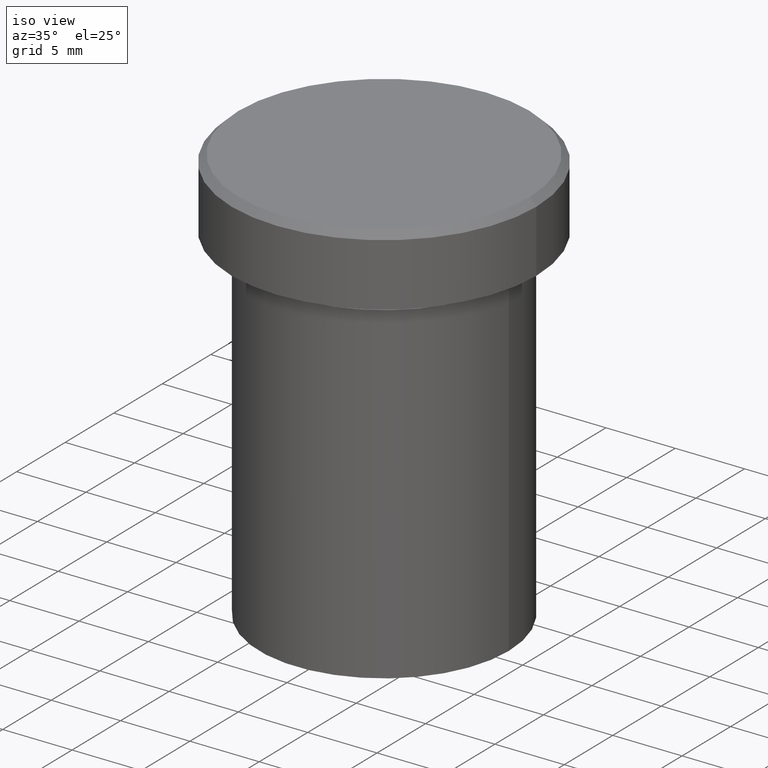
[diagram: clean part render]
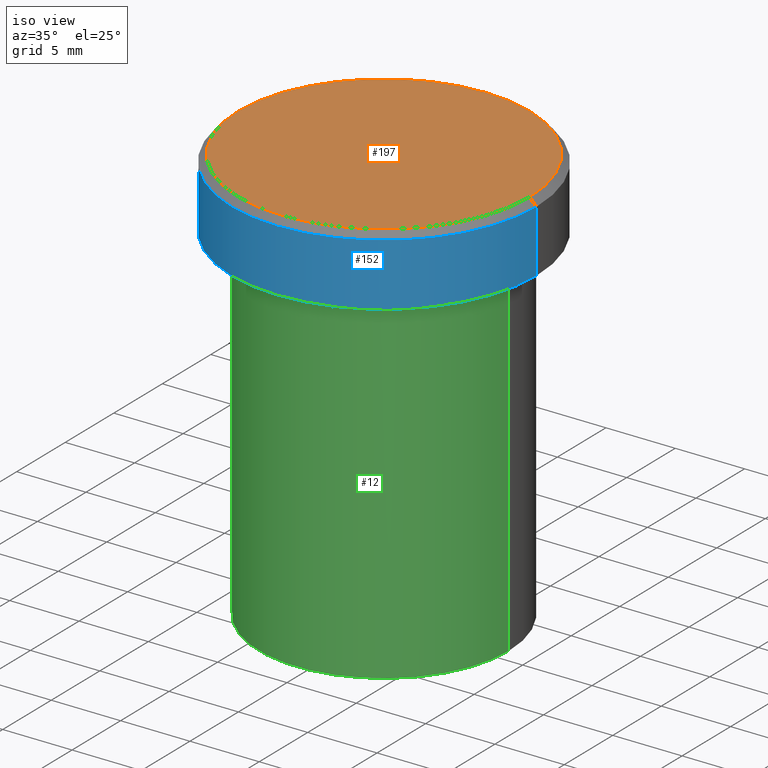
[diagram: same view with three faces highlighted in distinct colors, each labeled with its STEP entity id]
A machine part, iso view with three faces highlighted in distinct colors.
Their STEP definitions:

[orange] entity #197 — the highlighted planar face has unit normal (0, -0, 1).
#24 = ORIENTED_EDGE ( 'NONE', *, *, #82, .T. ) ;
#41 = AXIS2_PLACEMENT_3D ( 'NONE', #287, #258, #262 ) ;
#45 = DIRECTION ( 'NONE',  ( -0.000000000000000000, -0.000000000000000000, 1.000000000000000000 ) ) ;
#51 = CARTESIAN_POINT ( 'NONE',  ( 0.000000000000000000, 0.000000000000000000, 0.000000000000000000 ) ) ;
#69 = EDGE_CURVE ( 'NONE', #159, #156, #226, .T. ) ;
#82 = EDGE_CURVE ( 'NONE', #156, #159, #341, .T. ) ;
#150 = FACE_OUTER_BOUND ( 'NONE', #373, .T. ) ;
#156 = VERTEX_POINT ( 'NONE', #353 ) ;
#157 = AXIS2_PLACEMENT_3D ( 'NONE', #229, #45, #173 ) ;
#159 = VERTEX_POINT ( 'NONE', #198 ) ;
#173 = DIRECTION ( 'NONE',  ( 1.000000000000000000, 0.000000000000000000, 0.000000000000000000 ) ) ;
#197 = ADVANCED_FACE ( 'NONE', ( #150 ), #212, .T. ) ;
#198 = CARTESIAN_POINT ( 'NONE',  ( -10.49999999999999467, 0.000000000000000000, 0.000000000000000000 ) ) ;
#212 = PLANE ( 'NONE',  #326 ) ;
#226 = CIRCLE ( 'NONE', #41, 10.49999999999999467 ) ;
#229 = CARTESIAN_POINT ( 'NONE',  ( 0.000000000000000000, 0.000000000000000000, 0.000000000000000000 ) ) ;
#246 = ORIENTED_EDGE ( 'NONE', *, *, #69, .T. ) ;
#258 = DIRECTION ( 'NONE',  ( -0.000000000000000000, -0.000000000000000000, 1.000000000000000000 ) ) ;
#262 = DIRECTION ( 'NONE',  ( 1.000000000000000000, 0.000000000000000000, 0.000000000000000000 ) ) ;
#287 = CARTESIAN_POINT ( 'NONE',  ( 0.000000000000000000, 0.000000000000000000, 0.000000000000000000 ) ) ;
#326 = AXIS2_PLACEMENT_3D ( 'NONE', #51, #399, #332 ) ;
#332 = DIRECTION ( 'NONE',  ( 1.000000000000000000, 0.000000000000000000, 0.000000000000000000 ) ) ;
#341 = CIRCLE ( 'NONE', #157, 10.49999999999999467 ) ;
#353 = CARTESIAN_POINT ( 'NONE',  ( 10.49999999999999467, 1.316495309083404420E-15, 0.000000000000000000 ) ) ;
#373 = EDGE_LOOP ( 'NONE', ( #246, #24 ) ) ;
#399 = DIRECTION ( 'NONE',  ( 0.000000000000000000, -0.000000000000000000, 1.000000000000000000 ) ) ;

[blue] entity #152 — the highlighted cylindrical surface (partial cylindrical patch) has radius 11 mm, axis along (-0, -0, 1).
#4 = EDGE_CURVE ( 'NONE', #88, #63, #204, .T. ) ;
#5 = FACE_OUTER_BOUND ( 'NONE', #58, .T. ) ;
#58 = EDGE_LOOP ( 'NONE', ( #126, #215, #200, #338 ) ) ;
#63 = VERTEX_POINT ( 'NONE', #104 ) ;
#71 = CIRCLE ( 'NONE', #172, 11.00000000000000000 ) ;
#76 = VECTOR ( 'NONE', #102, 1000.000000000000000 ) ;
#88 = VERTEX_POINT ( 'NONE', #383 ) ;
#94 = EDGE_CURVE ( 'NONE', #88, #260, #71, .T. ) ;
#99 = AXIS2_PLACEMENT_3D ( 'NONE', #147, #394, #183 ) ;
#102 = DIRECTION ( 'NONE',  ( -0.000000000000000000, -0.000000000000000000, 1.000000000000000000 ) ) ;
#104 = CARTESIAN_POINT ( 'NONE',  ( -11.00000000000000178, 1.347111479062088602E-15, -0.5000000000000125455 ) ) ;
#126 = ORIENTED_EDGE ( 'NONE', *, *, #4, .F. ) ;
#136 = CARTESIAN_POINT ( 'NONE',  ( 0.000000000000000000, 0.000000000000000000, 0.000000000000000000 ) ) ;
#147 = CARTESIAN_POINT ( 'NONE',  ( 0.000000000000000000, 0.000000000000000000, -0.5000000000000125455 ) ) ;
#152 = ADVANCED_FACE ( 'NONE', ( #5 ), #292, .T. ) ;
#153 = AXIS2_PLACEMENT_3D ( 'NONE', #136, #236, #378 ) ;
#172 = AXIS2_PLACEMENT_3D ( 'NONE', #176, #203, #293 ) ;
#176 = CARTESIAN_POINT ( 'NONE',  ( 0.000000000000000000, 0.000000000000000000, -5.000000000000000000 ) ) ;
#183 = DIRECTION ( 'NONE',  ( 1.000000000000000000, 0.000000000000000000, 0.000000000000000000 ) ) ;
#200 = ORIENTED_EDGE ( 'NONE', *, *, #364, .T. ) ;
#203 = DIRECTION ( 'NONE',  ( -0.000000000000000000, -0.000000000000000000, 1.000000000000000000 ) ) ;
#204 = LINE ( 'NONE', #323, #76 ) ;
#214 = CIRCLE ( 'NONE', #99, 11.00000000000000178 ) ;
#215 = ORIENTED_EDGE ( 'NONE', *, *, #94, .T. ) ;
#217 = CARTESIAN_POINT ( 'NONE',  ( 11.00000000000000178, 0.000000000000000000, -0.5000000000000125455 ) ) ;
#236 = DIRECTION ( 'NONE',  ( -0.000000000000000000, -0.000000000000000000, 1.000000000000000000 ) ) ;
#244 = CARTESIAN_POINT ( 'NONE',  ( 11.00000000000000000, 0.000000000000000000, -5.000000000000000000 ) ) ;
#247 = DIRECTION ( 'NONE',  ( -0.000000000000000000, -0.000000000000000000, 1.000000000000000000 ) ) ;
#251 = EDGE_CURVE ( 'NONE', #294, #63, #214, .T. ) ;
#260 = VERTEX_POINT ( 'NONE', #244 ) ;
#292 = CYLINDRICAL_SURFACE ( 'NONE', #153, 11.00000000000000178 ) ;
#293 = DIRECTION ( 'NONE',  ( 1.000000000000000000, 0.000000000000000000, 0.000000000000000000 ) ) ;
#294 = VERTEX_POINT ( 'NONE', #217 ) ;
#304 = LINE ( 'NONE', #401, #375 ) ;
#323 = CARTESIAN_POINT ( 'NONE',  ( -11.00000000000000178, 1.347111479062088602E-15, 0.000000000000000000 ) ) ;
#338 = ORIENTED_EDGE ( 'NONE', *, *, #251, .T. ) ;
#364 = EDGE_CURVE ( 'NONE', #260, #294, #304, .T. ) ;
#375 = VECTOR ( 'NONE', #247, 1000.000000000000000 ) ;
#378 = DIRECTION ( 'NONE',  ( 1.000000000000000000, 0.000000000000000000, 0.000000000000000000 ) ) ;
#383 = CARTESIAN_POINT ( 'NONE',  ( -11.00000000000000000, 1.347111479062088602E-15, -5.000000000000000000 ) ) ;
#394 = DIRECTION ( 'NONE',  ( 0.000000000000000000, 0.000000000000000000, -1.000000000000000000 ) ) ;
#401 = CARTESIAN_POINT ( 'NONE',  ( 11.00000000000000178, 0.000000000000000000, 0.000000000000000000 ) ) ;

[green] entity #12 — the highlighted cylindrical surface (partial cylindrical patch) has radius 9 mm, axis along (-0, -0, 1).
#12 = ADVANCED_FACE ( 'NONE', ( #185 ), #362, .T. ) ;
#18 = DIRECTION ( 'NONE',  ( -0.000000000000000000, -0.000000000000000000, 1.000000000000000000 ) ) ;
#26 = CARTESIAN_POINT ( 'NONE',  ( 0.000000000000000000, 0.000000000000000000, -30.00000000000000000 ) ) ;
#33 = VECTOR ( 'NONE', #239, 1000.000000000000000 ) ;
#34 = EDGE_CURVE ( 'NONE', #310, #250, #213, .T. ) ;
#47 = CARTESIAN_POINT ( 'NONE',  ( 9.000000000000000000, 0.000000000000000000, -6.000000000000000000 ) ) ;
#61 = AXIS2_PLACEMENT_3D ( 'NONE', #205, #299, #320 ) ;
#84 = DIRECTION ( 'NONE',  ( 1.000000000000000000, 0.000000000000000000, 0.000000000000000000 ) ) ;
#93 = ORIENTED_EDGE ( 'NONE', *, *, #192, .F. ) ;
#113 = VERTEX_POINT ( 'NONE', #371 ) ;
#125 = CIRCLE ( 'NONE', #61, 9.000000000000000000 ) ;
#130 = ORIENTED_EDGE ( 'NONE', *, *, #34, .T. ) ;
#131 = ORIENTED_EDGE ( 'NONE', *, *, #409, .F. ) ;
#151 = CARTESIAN_POINT ( 'NONE',  ( 0.000000000000000000, 0.000000000000000000, 0.000000000000000000 ) ) ;
#169 = VERTEX_POINT ( 'NONE', #47 ) ;
#175 = LINE ( 'NONE', #208, #311 ) ;
#185 = FACE_OUTER_BOUND ( 'NONE', #406, .T. ) ;
#186 = CARTESIAN_POINT ( 'NONE',  ( 9.000000000000000000, 0.000000000000000000, 0.000000000000000000 ) ) ;
#191 = ORIENTED_EDGE ( 'NONE', *, *, #376, .T. ) ;
#192 = EDGE_CURVE ( 'NONE', #310, #113, #175, .T. ) ;
#205 = CARTESIAN_POINT ( 'NONE',  ( 0.000000000000000000, 0.000000000000000000, -6.000000000000000000 ) ) ;
#208 = CARTESIAN_POINT ( 'NONE',  ( -9.000000000000000000, 1.102182119232617714E-15, 0.000000000000000000 ) ) ;
#213 = CIRCLE ( 'NONE', #298, 9.000000000000000000 ) ;
#239 = DIRECTION ( 'NONE',  ( -0.000000000000000000, -0.000000000000000000, 1.000000000000000000 ) ) ;
#250 = VERTEX_POINT ( 'NONE', #300 ) ;
#298 = AXIS2_PLACEMENT_3D ( 'NONE', #26, #366, #84 ) ;
#299 = DIRECTION ( 'NONE',  ( -0.000000000000000000, -0.000000000000000000, 1.000000000000000000 ) ) ;
#300 = CARTESIAN_POINT ( 'NONE',  ( 9.000000000000000000, 0.000000000000000000, -30.00000000000000000 ) ) ;
#301 = DIRECTION ( 'NONE',  ( -0.000000000000000000, -0.000000000000000000, 1.000000000000000000 ) ) ;
#310 = VERTEX_POINT ( 'NONE', #358 ) ;
#311 = VECTOR ( 'NONE', #301, 1000.000000000000000 ) ;
#320 = DIRECTION ( 'NONE',  ( 1.000000000000000000, 0.000000000000000000, 0.000000000000000000 ) ) ;
#333 = LINE ( 'NONE', #186, #33 ) ;
#358 = CARTESIAN_POINT ( 'NONE',  ( -9.000000000000000000, 1.102182119232617714E-15, -30.00000000000000000 ) ) ;
#362 = CYLINDRICAL_SURFACE ( 'NONE', #372, 9.000000000000000000 ) ;
#366 = DIRECTION ( 'NONE',  ( -0.000000000000000000, -0.000000000000000000, 1.000000000000000000 ) ) ;
#371 = CARTESIAN_POINT ( 'NONE',  ( -9.000000000000000000, 1.102182119232617714E-15, -6.000000000000000000 ) ) ;
#372 = AXIS2_PLACEMENT_3D ( 'NONE', #151, #18, #400 ) ;
#376 = EDGE_CURVE ( 'NONE', #250, #169, #333, .T. ) ;
#400 = DIRECTION ( 'NONE',  ( 1.000000000000000000, 0.000000000000000000, 0.000000000000000000 ) ) ;
#406 = EDGE_LOOP ( 'NONE', ( #93, #130, #191, #131 ) ) ;
#409 = EDGE_CURVE ( 'NONE', #113, #169, #125, .T. ) ;